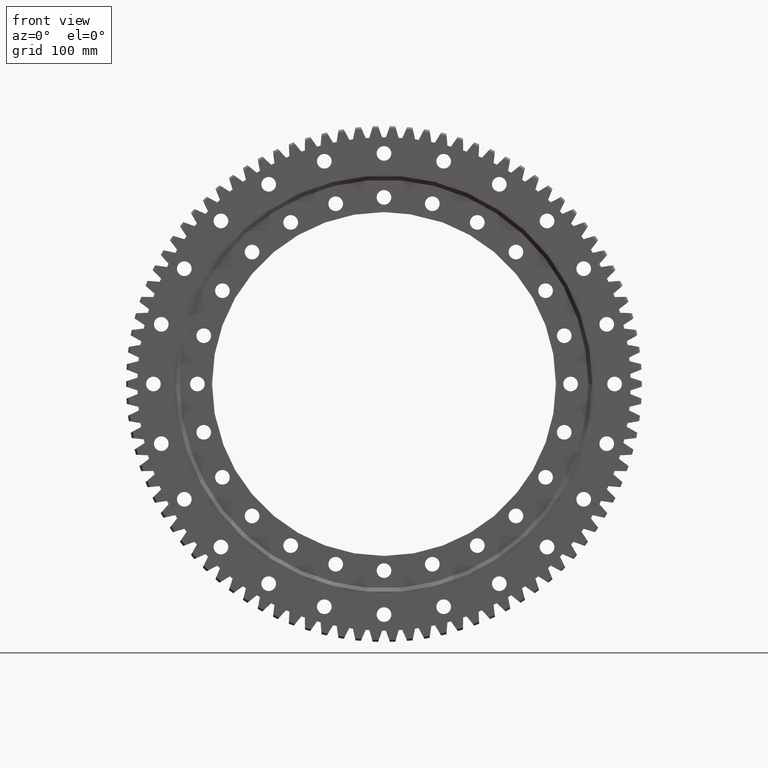
[diagram: clean part render]
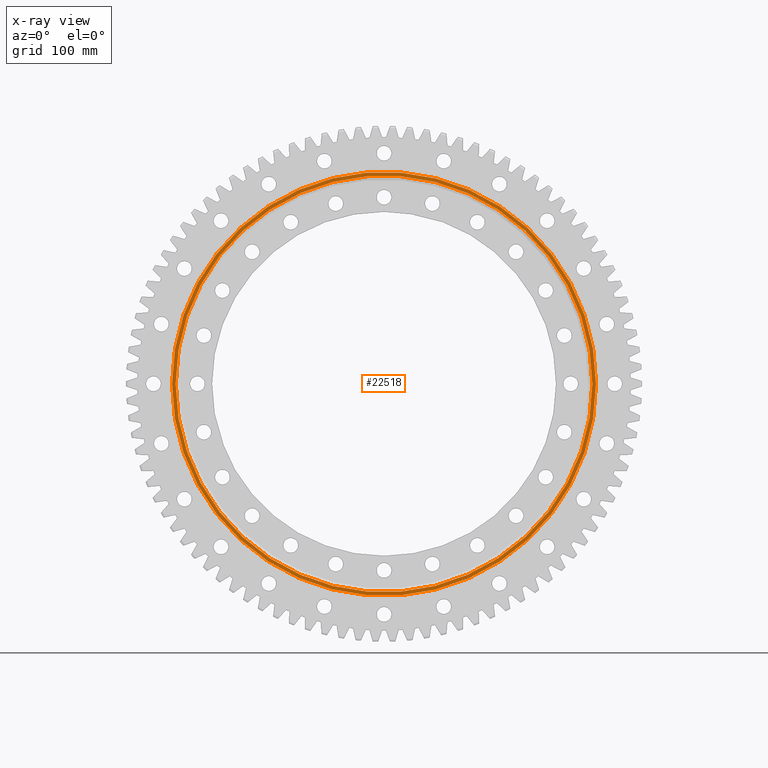
[diagram: x-ray — body ghosted, one internal face saturated and labeled with its STEP entity id]
A machine part, front view, then the same camera in x-ray: the body is ghosted and one INTERNAL B-rep face — a face not visible from any outside direction — is saturated and labeled: STEP entity #22518.
In plain terms, the highlighted planar face has unit normal (0, 1, -0).
Its self-contained STEP definition (entity closure, byte-faithful):
#428 = PLANE ( 'NONE',  #15618 ) ;
#600 = DIRECTION ( 'NONE',  ( -1.000000000000000000, 1.786923420260216300E-016, 0.0000000000000000000 ) ) ;
#3398 = CARTESIAN_POINT ( 'NONE',  ( -1.098968694060397000E-014, -29.94999999999999200, 0.0000000000000000000 ) ) ;
#3445 = CARTESIAN_POINT ( 'NONE',  ( 318.0374999999999100, -29.95000000000005300, 3.894836063838262600E-014 ) ) ;
#3926 = CARTESIAN_POINT ( 'NONE',  ( -312.5874999999999200, -29.94999999999993500, 3.828092813284731200E-014 ) ) ;
#4406 = ORIENTED_EDGE ( 'NONE', *, *, #9647, .T. ) ;
#4505 = AXIS2_PLACEMENT_3D ( 'NONE', #5639, #19266, #7595 ) ;
#4734 = VERTEX_POINT ( 'NONE', #23202 ) ;
#5360 = DIRECTION ( 'NONE',  ( -1.000000000000000000, 1.775859598712611300E-016, 0.0000000000000000000 ) ) ;
#5639 = CARTESIAN_POINT ( 'NONE',  ( -1.098968694060397100E-014, -29.94999999999999600, 0.0000000000000000000 ) ) ;
#6255 = ORIENTED_EDGE ( 'NONE', *, *, #10608, .F. ) ;
#6542 = CIRCLE ( 'NONE', #16580, 312.5874999999999200 ) ;
#6719 = DIRECTION ( 'NONE',  ( 1.786923420260216300E-016, 1.000000000000000000, -0.0000000000000000000 ) ) ;
#6804 = FACE_BOUND ( 'NONE', #18208, .T. ) ;
#7348 = CARTESIAN_POINT ( 'NONE',  ( -1.098968694060397100E-014, -29.94999999999999600, 0.0000000000000000000 ) ) ;
#7595 = DIRECTION ( 'NONE',  ( -1.000000000000000000, 1.745427857760730900E-016, 0.0000000000000000000 ) ) ;
#8085 = CARTESIAN_POINT ( 'NONE',  ( -318.0374999999999100, -29.94999999999994200, 0.0000000000000000000 ) ) ;
#8658 = EDGE_CURVE ( 'NONE', #4734, #10232, #6542, .T. ) ;
#9284 = DIRECTION ( 'NONE',  ( -1.000000000000000000, 1.745427857760730900E-016, 0.0000000000000000000 ) ) ;
#9647 = EDGE_CURVE ( 'NONE', #12202, #13068, #12903, .T. ) ;
#10232 = VERTEX_POINT ( 'NONE', #3926 ) ;
#10358 = CARTESIAN_POINT ( 'NONE',  ( -314.5874999999999200, -29.94999999999994600, 0.0000000000000000000 ) ) ;
#10608 = EDGE_CURVE ( 'NONE', #10232, #4734, #13160, .T. ) ;
#12202 = VERTEX_POINT ( 'NONE', #8085 ) ;
#12307 = DIRECTION ( 'NONE',  ( 1.786923420260216300E-016, 1.000000000000000000, -0.0000000000000000000 ) ) ;
#12903 = CIRCLE ( 'NONE', #4505, 318.0374999999999100 ) ;
#13068 = VERTEX_POINT ( 'NONE', #3445 ) ;
#13160 = CIRCLE ( 'NONE', #13498, 312.5874999999999200 ) ;
#13397 = CIRCLE ( 'NONE', #22696, 318.0374999999999100 ) ;
#13498 = AXIS2_PLACEMENT_3D ( 'NONE', #3398, #17045, #5360 ) ;
#15618 = AXIS2_PLACEMENT_3D ( 'NONE', #10358, #12307, #600 ) ;
#16262 = EDGE_LOOP ( 'NONE', ( #4406, #24097 ) ) ;
#16567 = FACE_OUTER_BOUND ( 'NONE', #16262, .T. ) ;
#16580 = AXIS2_PLACEMENT_3D ( 'NONE', #18409, #6719, #20355 ) ;
#17045 = DIRECTION ( 'NONE',  ( 1.786923420260216300E-016, 1.000000000000000000, -0.0000000000000000000 ) ) ;
#18208 = EDGE_LOOP ( 'NONE', ( #22829, #6255 ) ) ;
#18409 = CARTESIAN_POINT ( 'NONE',  ( -1.098968694060397000E-014, -29.94999999999999200, 0.0000000000000000000 ) ) ;
#19266 = DIRECTION ( 'NONE',  ( 1.786923420260216300E-016, 1.000000000000000000, -0.0000000000000000000 ) ) ;
#20355 = DIRECTION ( 'NONE',  ( -1.000000000000000000, 1.775859598712611300E-016, 0.0000000000000000000 ) ) ;
#20988 = DIRECTION ( 'NONE',  ( 1.786923420260216300E-016, 1.000000000000000000, -0.0000000000000000000 ) ) ;
#22518 = ADVANCED_FACE ( 'NONE', ( #16567, #6804 ), #428, .T. ) ;
#22696 = AXIS2_PLACEMENT_3D ( 'NONE', #7348, #20988, #9284 ) ;
#22829 = ORIENTED_EDGE ( 'NONE', *, *, #8658, .F. ) ;
#23202 = CARTESIAN_POINT ( 'NONE',  ( 312.5874999999999200, -29.95000000000004500, 0.0000000000000000000 ) ) ;
#24097 = ORIENTED_EDGE ( 'NONE', *, *, #24551, .T. ) ;
#24551 = EDGE_CURVE ( 'NONE', #13068, #12202, #13397, .T. ) ;